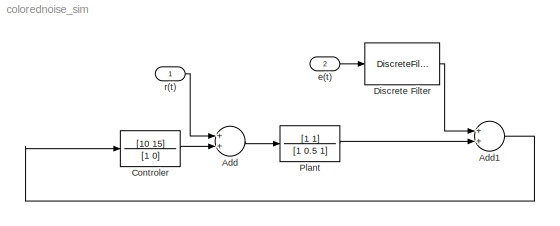
MODEL colorednoise_sim
KIND model
BLOCK [Sum] Add
  InputSameDT = off
  OutDataTypeStr = Inherit: Inherit via internal rule
  Ports = [2, 1]
  SID = 3
  SaturateOnIntegerOverflow = off
BLOCK [Sum] Add1
  InputSameDT = off
  OutDataTypeStr = Inherit: Inherit via internal rule
  Ports = [2, 1]
  SID = 4
  SaturateOnIntegerOverflow = off
BLOCK [TransferFcn] Controler
  Denominator = [1 0]
  Numerator = [10 15]
  SID = 5
BLOCK [DiscreteFilter] Discrete Filter
  Denominator = [1 -0.85]
  InputPortMap = u0
  Numerator = [1 0.5]
  Ports = [1, 1]
  SID = 6
  SampleTime = 1
BLOCK [TransferFcn] Plant
  Denominator = [1  0.5 1]
  Numerator = [1 1]
  SID = 7
BLOCK [Inport] e(t)
  IconDisplay = Port number
  Port = 2
  SID = 2
BLOCK [Inport] r(t)
  IconDisplay = Port number
  SID = 1
LINE Add1:1 -> Controler:1
LINE Add:1 -> Plant:1
LINE Controler:1 -> Add:2
LINE Discrete Filter:1 -> Add1:1
LINE Plant:1 -> Add1:2
LINE e(t):1 -> Discrete Filter:1
LINE r(t):1 -> Add:1
